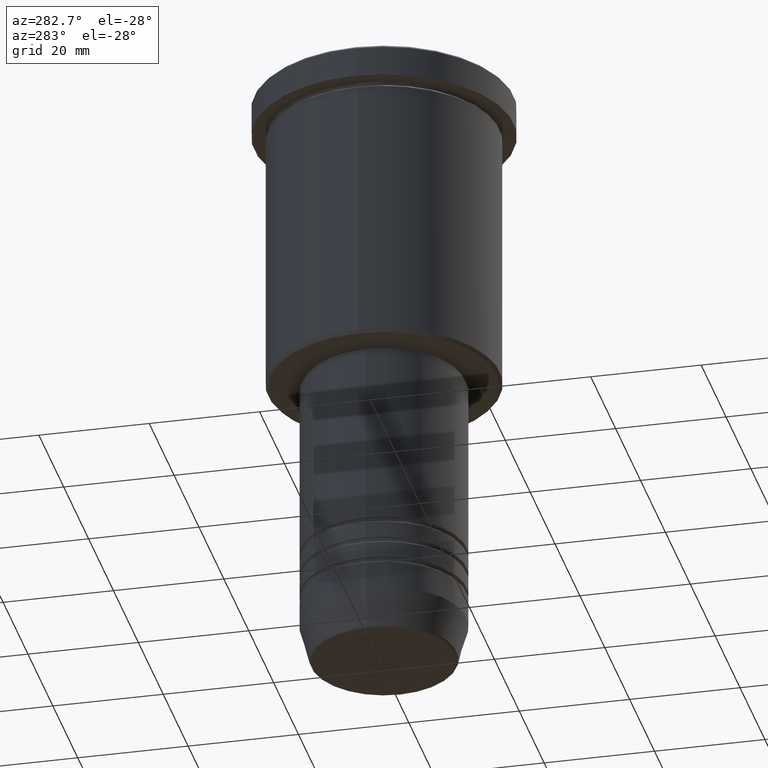
[diagram: clean part render]
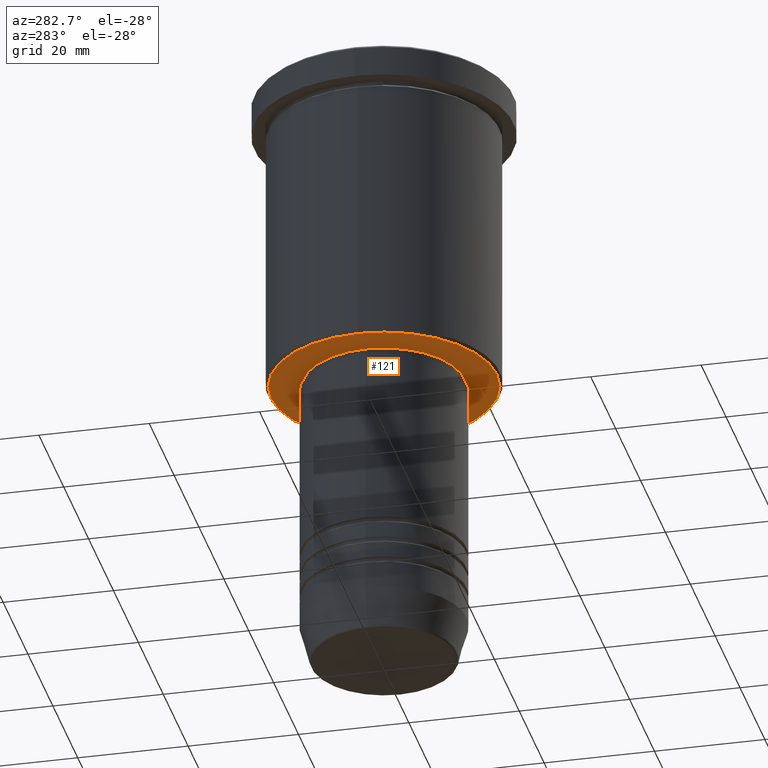
[diagram: same view with one face highlighted and labeled with its STEP entity id]
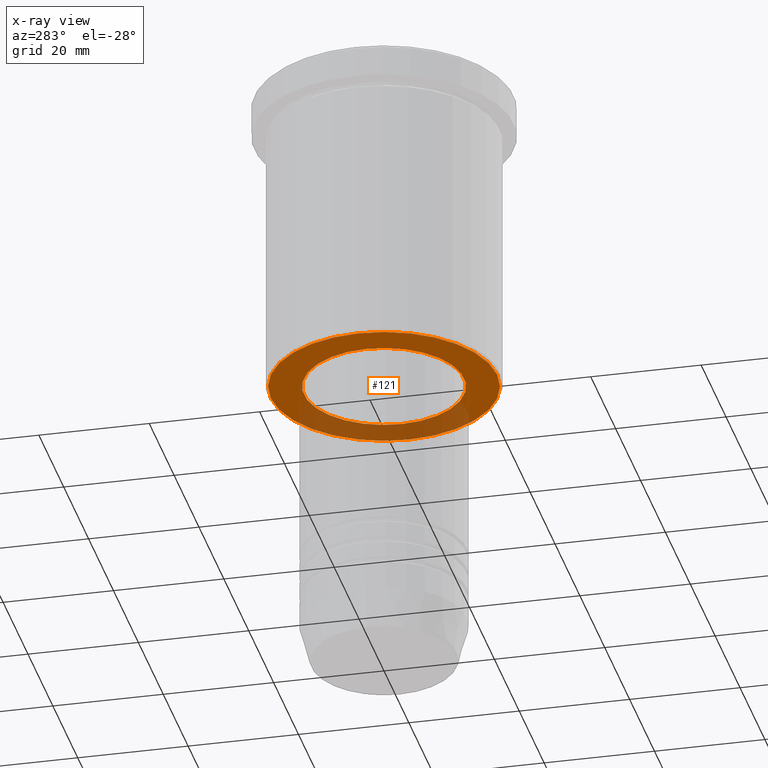
[diagram: x-ray of the same camera — body ghosted, the highlighted face saturated]
A machine part, auxiliary view. The second image highlights one B-rep face of the part: STEP entity #121.
The next image is the same camera in x-ray: the body ghosted, the highlighted face saturated — about 32% of this face is hidden behind the body in this view.
In plain terms, the highlighted planar face has unit normal (0, 0, -1).
Its self-contained STEP definition (entity closure, byte-faithful):
#19 = AXIS2_PLACEMENT_3D ( 'NONE', #1060, #72, #882 ) ;
#50 = DIRECTION ( 'NONE',  ( 1.000000000000000000, 0.000000000000000000, 0.000000000000000000 ) ) ;
#72 = DIRECTION ( 'NONE',  ( 0.000000000000000000, 0.000000000000000000, -1.000000000000000000 ) ) ;
#95 = CARTESIAN_POINT ( 'NONE',  ( 0.000000000000000000, 0.000000000000000000, -56.00000000000000711 ) ) ;
#121 = ADVANCED_FACE ( 'NONE', ( #429, #977 ), #1046, .T. ) ;
#137 = CARTESIAN_POINT ( 'NONE',  ( -20.50000000000003197, 2.541142108230759846E-15, -56.00000000000000711 ) ) ;
#170 = EDGE_CURVE ( 'NONE', #403, #795, #591, .T. ) ;
#207 = CARTESIAN_POINT ( 'NONE',  ( -14.49999999999999822, 1.775737858763662015E-15, -56.00000000000000000 ) ) ;
#248 = DIRECTION ( 'NONE',  ( 0.000000000000000000, 0.000000000000000000, -1.000000000000000000 ) ) ;
#282 = AXIS2_PLACEMENT_3D ( 'NONE', #951, #248, #600 ) ;
#285 = AXIS2_PLACEMENT_3D ( 'NONE', #943, #313, #50 ) ;
#287 = DIRECTION ( 'NONE',  ( -0.000000000000000000, -0.000000000000000000, 1.000000000000000000 ) ) ;
#313 = DIRECTION ( 'NONE',  ( -0.000000000000000000, -0.000000000000000000, 1.000000000000000000 ) ) ;
#331 = VERTEX_POINT ( 'NONE', #207 ) ;
#340 = ORIENTED_EDGE ( 'NONE', *, *, #740, .T. ) ;
#363 = CIRCLE ( 'NONE', #762, 14.49999999999999822 ) ;
#378 = VERTEX_POINT ( 'NONE', #1086 ) ;
#403 = VERTEX_POINT ( 'NONE', #847 ) ;
#429 = FACE_OUTER_BOUND ( 'NONE', #1156, .T. ) ;
#435 = EDGE_CURVE ( 'NONE', #378, #331, #797, .T. ) ;
#439 = CIRCLE ( 'NONE', #616, 20.50000000000003197 ) ;
#526 = ORIENTED_EDGE ( 'NONE', *, *, #170, .T. ) ;
#591 = CIRCLE ( 'NONE', #19, 20.50000000000003197 ) ;
#600 = DIRECTION ( 'NONE',  ( -1.000000000000000000, 0.000000000000000000, -0.000000000000000000 ) ) ;
#616 = AXIS2_PLACEMENT_3D ( 'NONE', #95, #1102, #651 ) ;
#651 = DIRECTION ( 'NONE',  ( -1.000000000000000000, 0.000000000000000000, 0.000000000000000000 ) ) ;
#684 = EDGE_LOOP ( 'NONE', ( #909, #340 ) ) ;
#700 = EDGE_CURVE ( 'NONE', #795, #403, #439, .T. ) ;
#740 = EDGE_CURVE ( 'NONE', #331, #378, #363, .T. ) ;
#762 = AXIS2_PLACEMENT_3D ( 'NONE', #1097, #287, #999 ) ;
#795 = VERTEX_POINT ( 'NONE', #137 ) ;
#797 = CIRCLE ( 'NONE', #285, 14.49999999999999822 ) ;
#847 = CARTESIAN_POINT ( 'NONE',  ( 20.50000000000003197, 0.000000000000000000, -56.00000000000000711 ) ) ;
#865 = ORIENTED_EDGE ( 'NONE', *, *, #700, .T. ) ;
#882 = DIRECTION ( 'NONE',  ( -1.000000000000000000, 0.000000000000000000, 0.000000000000000000 ) ) ;
#909 = ORIENTED_EDGE ( 'NONE', *, *, #435, .T. ) ;
#943 = CARTESIAN_POINT ( 'NONE',  ( 0.000000000000000000, 0.000000000000000000, -56.00000000000000000 ) ) ;
#951 = CARTESIAN_POINT ( 'NONE',  ( 0.000000000000000000, 21.00000000000000000, -56.00000000000000711 ) ) ;
#977 = FACE_BOUND ( 'NONE', #684, .T. ) ;
#999 = DIRECTION ( 'NONE',  ( 1.000000000000000000, 0.000000000000000000, 0.000000000000000000 ) ) ;
#1046 = PLANE ( 'NONE',  #282 ) ;
#1060 = CARTESIAN_POINT ( 'NONE',  ( 0.000000000000000000, 0.000000000000000000, -56.00000000000000711 ) ) ;
#1086 = CARTESIAN_POINT ( 'NONE',  ( 14.49999999999999822, 0.000000000000000000, -56.00000000000000000 ) ) ;
#1097 = CARTESIAN_POINT ( 'NONE',  ( 0.000000000000000000, 0.000000000000000000, -56.00000000000000000 ) ) ;
#1102 = DIRECTION ( 'NONE',  ( 0.000000000000000000, 0.000000000000000000, -1.000000000000000000 ) ) ;
#1156 = EDGE_LOOP ( 'NONE', ( #526, #865 ) ) ;